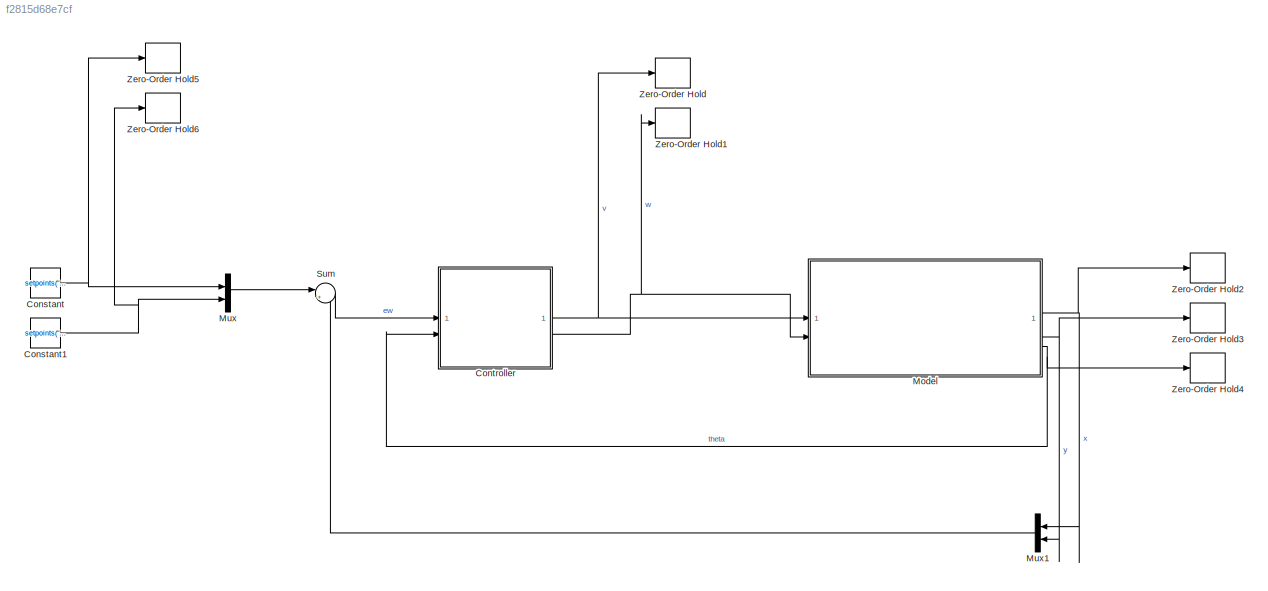
MODEL slx_f2815d68e7cf
KIND model
CONFIG AbsTol = auto
CONFIG EnableMultiTasking = off
CONFIG FixedStep = auto
CONFIG MaxStep = auto
CONFIG MinStep = auto
CONFIG RelTol = 1e-3
CONFIG SampleTimeConstraint = Unconstrained
CONFIG SolverName = VariableStepAuto
CONFIG StartTime = 0.0
CONFIG StopTime = 30
BLOCK [Constant] Constant
  Value = setpoints("setpoint"+sim_trajectory_id).x
BLOCK [Constant] Constant1
  Value = setpoints("setpoint"+sim_trajectory_id).y
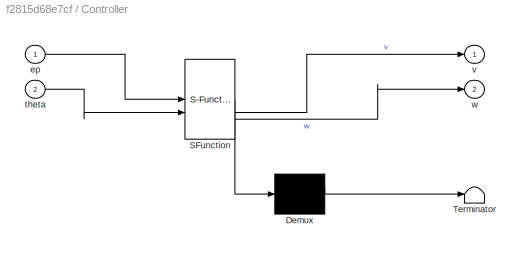
BLOCK [SubSystem] Controller
  ErrorFcn = Stateflow.Translate.translate
  PermitHierarchicalResolution = ExplicitOnly
  SFBlockType = MATLAB Function
  TreatAsAtomicUnit = on
BLOCK [Demux] Controller/ Demux 
  Outputs = 1
BLOCK [S-Function] Controller/ SFunction 
  EnableBusSupport = off
  FunctionName = sf_sfun
  PortCounts = [2 3]
  SFcnIsStateOwnerBlock = off
  SFunctionDeploymentMode = off
  Tag = Stateflow S-Function 2
BLOCK [Terminator] Controller/ Terminator 
BLOCK [Inport] Controller/ep
BLOCK [Inport] Controller/theta
  Port = 2
BLOCK [Outport] Controller/v
BLOCK [Outport] Controller/w
  Port = 2
BLOCK [ModelReference] Model
  ModelNameDialog = unicycle.slx
  ModelReferenceVersion = 1.13
  PortSchema = {"entries":[{"content":{"sides":[{"content":{"connectorIds":["In1","In2"]},"type":"ConnectorPlacement.EquallySpacedRectSide","uuid":"ad25d81c-9301-4260-b0e7-6964e2a4144d"},{"content":{"connectorIds":["Out1","Out2","Out3"],"side":"RIGHT"},"type":"ConnectorPlacement.EquallySpacedRectSide","uuid":"e119e278-1a19-4d21-ac57-f30b4b2846c4"},{"content":{"side":"TOP"},"type":"ConnectorPlacement.EquallySpace...<+392ch>
BLOCK [Mux] Mux
  DisplayOption = bar
  Inputs = 2
BLOCK [Mux] Mux1
  DisplayOption = bar
  Inputs = 2
  NameLocation = top
BLOCK [Sum] Sum
  Inputs = |+-
BLOCK [ZeroOrderHold] Zero-Order Hold
  SampleTime = Ts
BLOCK [ZeroOrderHold] Zero-Order Hold1
  SampleTime = Ts
BLOCK [ZeroOrderHold] Zero-Order Hold2
  SampleTime = Ts
BLOCK [ZeroOrderHold] Zero-Order Hold3
  SampleTime = Ts
BLOCK [ZeroOrderHold] Zero-Order Hold4
  SampleTime = Ts
BLOCK [ZeroOrderHold] Zero-Order Hold5
  SampleTime = Ts
BLOCK [ZeroOrderHold] Zero-Order Hold6
  SampleTime = Ts
NET Constant1:1 -> Mux:2, Zero-Order Hold6:1
NET Constant:1 -> Mux:1, Zero-Order Hold5:1
NET Controller:1 -> Model:1, Zero-Order Hold:1
NET Controller:2 -> Model:2, Zero-Order Hold1:1
NET Model:1 -> Mux1:1, Zero-Order Hold2:1
NET Model:2 -> Mux1:2, Zero-Order Hold3:1
NET Model:3 -> Controller:2, Zero-Order Hold4:1
LINE Mux1:1 -> Sum:2
LINE Mux:1 -> Sum:1
LINE Sum:1 -> Controller:1
note: NET lines group one-source signal fan-out (src -> all destinations, sorted); 1:1 wires keep LINE
CHART Controller states=1 transitions=1
  STATE_LABEL 'eML_blk_kernel()'
  STATE_LABEL 'SCRIPT:\nfunction [v, w]= fcn(ep,theta)\ntheta = wrapToPi(theta);\n\nepn = ep(1)*cos(theta) + ep(2)*sin(theta);\ndelta = atan2(ep(2), ep(1));\ngamma = delta - theta;\nkv = 1;\nkw = 0.001;\nv = kv * epn;\nw = kw * gamma;\nend\n'
CHART  states=0 transitions=0
